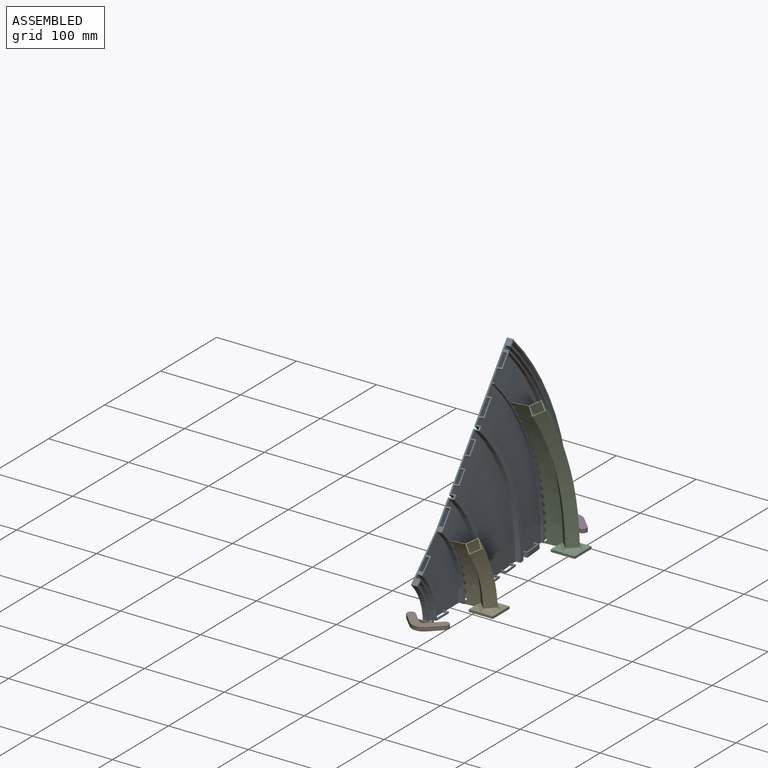
[diagram: assembled view]
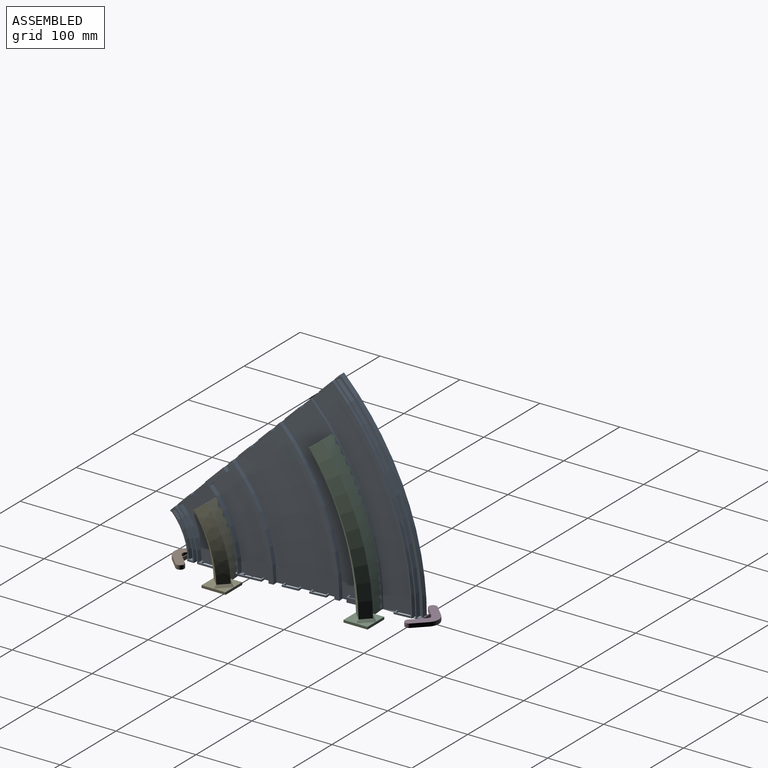
[diagram: assembled view, second angle]
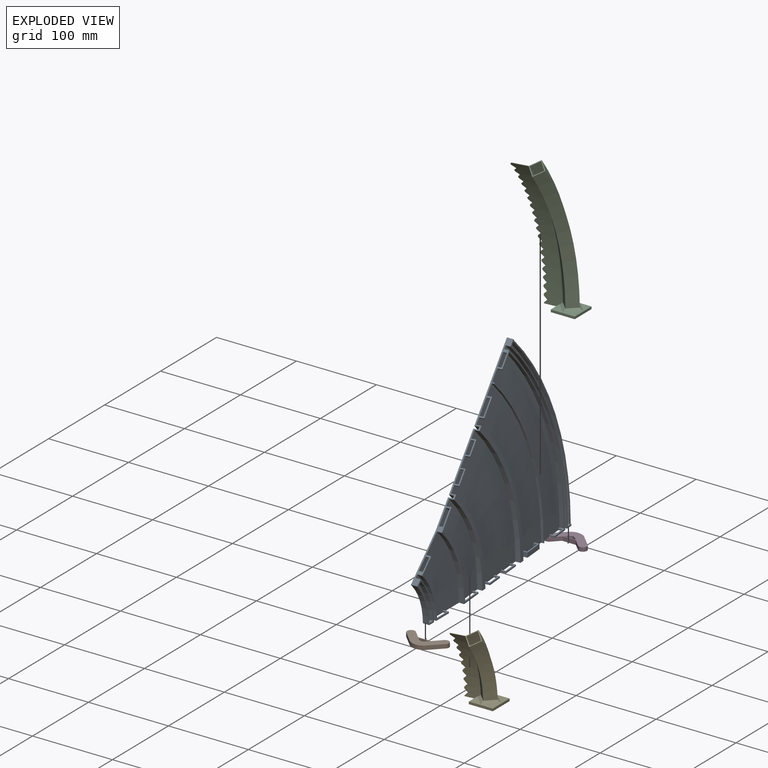
[diagram: exploded view]
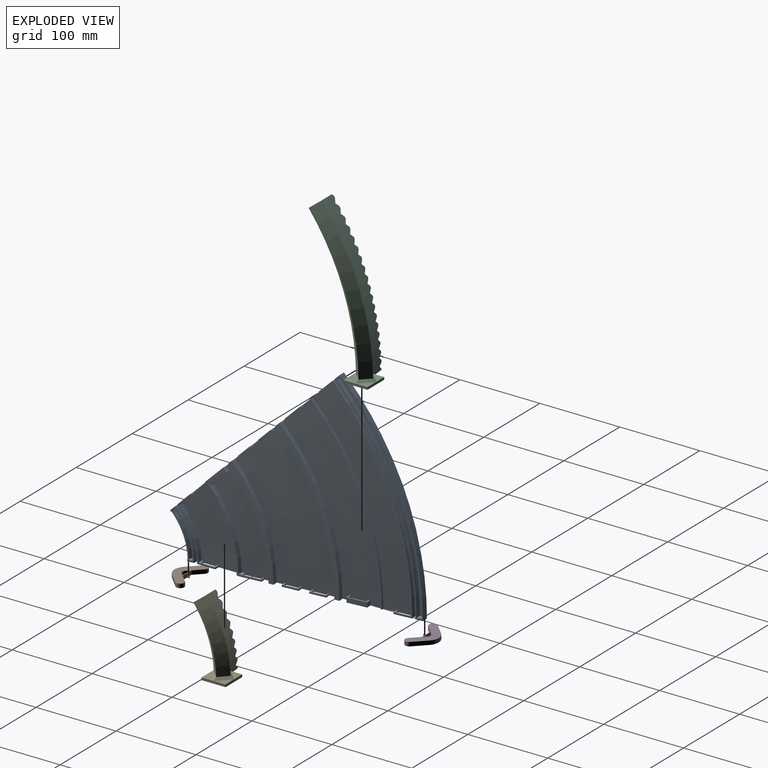
[diagram: exploded view, second angle]
ASSEMBLY  parts=5 mates=4
PART A: 158 faces, bbox 27x302.6x250.5 mm
  f0: plane 17.99x17.99mm, normal (0,0.71,-0.71), area 58.7mm2, adj f1,f97,f98,f99,f101,f152
  f1: cone r=137.1mm half-angle=85deg, axis (-1,0,0), area 4208mm2, adj f0,f2,f22,f51,f52,f98,f99,f100
  f2: cylinder r=137.1mm len=94.94mm, axis (-1,0,0), area 652.2mm2, adj f1,f50,f51,f97,f145,f152
  f3: cone r=178.54mm half-angle=5deg, axis (1,0,0), area 843.2mm2, adj f17,f18,f95,f143
  f4: cylinder r=340.09mm len=237.06mm, axis (-1,0,0), area 1476.4mm2, adj f5,f19,f69,f124
  f5: plane 238.13x99.7mm, normal (1,0,0), area 396.2mm2, adj f4,f30,f69,f124
  f6: cylinder r=347.09mm len=242.01mm, axis (-1,0,0), area 1671.7mm2, adj f7,f33,f65,f120
  f7: cone r=351.47mm half-angle=85deg, axis (-1,0,0), area 1187.1mm2, adj f6,f8,f65,f120
  f8: cone r=352.47mm half-angle=11deg, axis (1,0,0), area 1424.4mm2, adj f7,f9,f65,f120
  f9: plane 247.02x103.52mm, normal (1,0,0), area 465.6mm2, adj f8,f34,f65,f120
  f10: cone r=173.88mm half-angle=5deg, axis (1,0,0), area 794.2mm2, adj f42,f43,f62,f117
  f11: plane 51.62x23.05mm, normal (1,0,0), area 91.8mm2, adj f12,f45,f60,f61,f115,f116
  f12: cone r=74.7mm half-angle=10.9deg, axis (-1,0,0), area 291.6mm2, adj f11,f13,f60,f115
  f13: plane 53.14x25.05mm, normal (1,0,0), area 245.7mm2, adj f12,f14,f60,f115
  f14: cylinder r=80mm len=53.14mm, axis (-1,0,0), area 364.8mm2, adj f13,f46,f60,f115
  f15: cylinder r=81.5mm len=54.2mm, axis (-1,0,0), area 372.1mm2, adj f20,f46,f58,f113
  f16: cylinder r=87mm len=58.09mm, axis (-1,0,0), area 398.8mm2, adj f21,f48,f54,f109
  f17: cone r=172.56mm half-angle=85deg, axis (-1,0,0), area 827.3mm2, adj f3,f22,f51,f52,f96,f144
  f18: cone r=178mm half-angle=85deg, axis (-1,0,0), area 12063.6mm2, adj f3,f23,f51,f52,f83,f84,f85,f86
  f19: cone r=340.09mm half-angle=85deg, axis (-1,0,0), area 9142.4mm2, adj f4,f29,f51,f52,f69,f71,f72,f73
  f20: plane 60.46x27.87mm, normal (1,0,0), area 262.3mm2, adj f15,f47,f51,f52,f58,f59,f113,f114
  f21: plane 95.53x72.18mm, normal (1,0,0), area 4176.4mm2, adj f16,f49,f51,f52,f54,f55,f56,f57
  f22: cone r=172.02mm half-angle=5deg, axis (1,0,0), area 839mm2, adj f1,f17,f51,f52
  f23: cone r=250.26mm half-angle=5deg, axis (1,0,0), area 1217.3mm2, adj f18,f24,f51,f52
  f24: cone r=256.24mm half-angle=85deg, axis (-1,0,0), area 1193.4mm2, adj f23,f25,f51,f52
  f25: cone r=255.7mm half-angle=5deg, axis (1,0,0), area 1246.4mm2, adj f24,f26,f51,f52
  f26: cone r=302.52mm half-angle=85deg, axis (-1,0,0), area 10272.6mm2, adj f25,f27,f51,f52,f76,f77,f78,f79
  f27: cone r=302.52mm half-angle=5deg, axis (1,0,0), area 713.1mm2, adj f26,f28,f51,f52
  f28: cone r=302.78mm half-angle=85deg, axis (-1,0,0), area 357.6mm2, adj f27,f29,f51,f52
  f29: cone r=304.28mm half-angle=5deg, axis (1,0,0), area 716.6mm2, adj f19,f28,f51,f52
  f30: cylinder r=341.59mm len=241.54mm, axis (-1,0,0), area 1540.6mm2, adj f5,f31,f51,f52,f70,f125
  f31: cone r=341.59mm half-angle=85deg, axis (-1,0,0), area 1083.5mm2, adj f30,f32,f51,f52
  f32: cylinder r=345.59mm len=244.37mm, axis (-1,0,0), area 1653.7mm2, adj f31,f33,f51,f52
  f33: plane 245.47x102.76mm, normal (1,0,0), area 406.8mm2, adj f6,f32,f51,f52,f64,f65,f119,f120
  f34: cylinder r=354.17mm len=250.43mm, axis (-1,0,0), area 1947.1mm2, adj f9,f35,f51,f52,f66,f121
  f35: plane 250.48x105.19mm, normal (-1,0,0), area 554.8mm2, adj f34,f36,f51,f52
  f36: cone r=254.05mm half-angle=85deg, axis (-1,0,0), area 23447.1mm2, adj f35,f37,f51,f52
  f37: cone r=254.57mm half-angle=5deg, axis (1,0,0), area 1198.4mm2, adj f36,f38,f51,f52
  f38: cone r=251.58mm half-angle=85deg, axis (-1,0,0), area 596.3mm2, adj f37,f39,f51,f52
  f39: cone r=251.06mm half-angle=5deg, axis (1,0,0), area 1184.3mm2, adj f38,f40,f51,f52
  f40: cone r=176.35mm half-angle=85deg, axis (-1,0,0), area 12588.2mm2, adj f39,f41,f51,f52
  f41: cone r=176.35mm half-angle=5deg, axis (1,0,0), area 832.2mm2, adj f40,f42,f51,f52
  f42: cone r=176.87mm half-angle=85deg, axis (-1,0,0), area 411.7mm2, adj f10,f41,f51,f52,f63,f118
  f43: cone r=173.36mm half-angle=85deg, axis (-1,0,0), area 4557.2mm2, adj f10,f44,f51,f52,f63,f118
  f44: plane 96.17x84.39mm, normal (-1,0,0), area 5170.7mm2, adj f43,f45,f51,f52
  f45: cylinder r=73mm len=51.62mm, axis (-1,0,0), area 401.3mm2, adj f11,f44,f51,f52
  f46: plane 57.63x29.88mm, normal (1,0,0), area 123.1mm2, adj f14,f15,f51,f52,f58,f59,f60,f61
  f47: cylinder r=85.5mm len=60.46mm, axis (-1,0,0), area 416.3mm2, adj f20,f48,f51,f52
  f48: plane 76.44x47.64mm, normal (1,0,0), area 186mm2, adj f16,f47,f51,f52,f54,f55,f109,f110
  f49: cylinder r=135.1mm len=95.53mm, axis (-1,0,0), area 657.9mm2, adj f21,f50,f51,f52
  f50: plane 96.94x41.57mm, normal (1,0,0), area 213.8mm2, adj f2,f49,f51,f52,f145,f150
  f51: plane 198.82x198.82mm, normal (0,-0.71,0.71), area 1006.1mm2, adj f1,f2,f17,f18,f19,f20,f21,f22
  f52: plane 281.17x26.91mm, normal (0,0,-1), area 1012.3mm2, adj f1,f17,f18,f19,f20,f21,f22,f23
  f53: plane 13.01x13.01mm, normal (-1,0,0), area 32.8mm2, adj f51,f54,f56,f57
  f54: plane 14.94x14.94mm, normal (0,0.71,-0.71), area 53.9mm2, adj f16,f21,f48,f53,f55,f56,f57
  f55: plane 6.2x1.41mm, normal (0,0.71,0.71), area 12.4mm2, adj f21,f48,f51,f54
  f56: plane 4.7x1.41mm, normal (0,-0.71,-0.71), area 9.4mm2, adj f21,f51,f53,f54
  f57: plane 4.7x1.41mm, normal (0,0.71,0.71), area 9.4mm2, adj f21,f51,f53,f54
  f58: plane 6.2x0.02mm, normal (0,0.71,-0.71), area 0.2mm2, adj f15,f20,f46,f59
  f59: plane 6.2x1.41mm, normal (0,0.71,0.71), area 12.4mm2, adj f20,f46,f51,f58
  f60: plane 6.2x4.93mm, normal (0,0.71,-0.71), area 31.9mm2, adj f11,f12,f13,f14,f46,f61
  f61: plane 1.41x1.41mm, normal (0,-0.71,-0.71), area 2mm2, adj f11,f46,f51,f60
  f62: plane 5.98x0.38mm, normal (0,0.71,-0.71), area 0mm2, adj f10,f63
  f63: plane 5.98x1.79mm, normal (-0.09,0.7,0.7), area 12mm2, adj f42,f43,f51,f62
  f64: plane 6.42x6.42mm, normal (1,0.06,0.06), area 14.2mm2, adj f33,f51,f65,f66
  f65: plane 6.61x5.01mm, normal (0,0.71,-0.71), area 32.4mm2, adj f6,f7,f8,f9,f33,f64,f66
  f66: plane 1.43x1.43mm, normal (0,0.71,0.71), area 1.7mm2, adj f34,f51,f64,f65
  f67: plane 16.75x16.75mm, normal (1,0.06,0.06), area 43.6mm2, adj f51,f69,f70,f71
  f68: plane 12.97x12.97mm, normal (-1,-0.06,-0.06), area 32.8mm2, adj f51,f69,f72,f73
  f69: plane 15.72x15.72mm, normal (0,0.71,-0.71), area 51.1mm2, adj f4,f5,f19,f67,f68,f70,f71,f72
  f70: plane 1.43x1.43mm, normal (0,0.71,0.71), area 1mm2, adj f30,f51,f67,f69
  f71: plane 6.18x1.8mm, normal (0.09,-0.7,-0.7), area 12.4mm2, adj f19,f51,f67,f69
  f72: plane 4.69x1.71mm, normal (0.09,-0.7,-0.7), area 9.4mm2, adj f19,f51,f68,f69
  f73: plane 4.69x1.71mm, normal (-0.09,0.7,0.7), area 9.4mm2, adj f19,f51,f68,f69
  f74: plane 18.74x18.74mm, normal (1,0.06,0.06), area 49.2mm2, adj f51,f76,f77,f78
  f75: plane 16.07x16.07mm, normal (-1,-0.06,-0.06), area 41.6mm2, adj f51,f76,f79,f80
  f76: plane 17.71x17.71mm, normal (0,0.71,-0.71), area 54.8mm2, adj f26,f74,f75,f77,f78,f79,f80
  f77: plane 6.18x1.8mm, normal (-0.09,0.7,0.7), area 12.4mm2, adj f26,f51,f74,f76
  f78: plane 6.18x1.8mm, normal (0.09,-0.7,-0.7), area 12.4mm2, adj f26,f51,f74,f76
  f79: plane 4.69x1.71mm, normal (0.09,-0.7,-0.7), area 9.4mm2, adj f26,f51,f75,f76
  f80: plane 4.69x1.71mm, normal (-0.09,0.7,0.7), area 9.4mm2, adj f26,f51,f75,f76
  f81: plane 12.97x12.97mm, normal (-1,-0.06,-0.06), area 32.8mm2, adj f51,f83,f86,f87
  f82: plane 15.29x15.29mm, normal (1,0.06,0.06), area 39.4mm2, adj f51,f83,f84,f85
  f83: plane 14.26x14.26mm, normal (0,0.71,-0.71), area 45.1mm2, adj f18,f81,f82,f84,f85,f86,f87
  f84: plane 6.18x1.8mm, normal (-0.09,0.7,0.7), area 12.4mm2, adj f18,f51,f82,f83
  f85: plane 6.18x1.8mm, normal (0.09,-0.7,-0.7), area 12.4mm2, adj f18,f51,f82,f83
  f86: plane 4.69x1.71mm, normal (0.09,-0.7,-0.7), area 9.4mm2, adj f18,f51,f81,f83
  f87: plane 4.69x1.71mm, normal (-0.09,0.7,0.7), area 9.4mm2, adj f18,f51,f81,f83
  f88: plane 12.97x12.97mm, normal (-1,-0.06,-0.06), area 32.8mm2, adj f51,f90,f93,f94
  f89: plane 15.29x15.29mm, normal (1,0.06,0.06), area 39.4mm2, adj f51,f90,f91,f92
  f90: plane 14.26x14.26mm, normal (0,0.71,-0.71), area 45.1mm2, adj f18,f88,f89,f91,f92,f93,f94
  f91: plane 6.18x1.8mm, normal (-0.09,0.7,0.7), area 12.4mm2, adj f18,f51,f89,f90
  f92: plane 6.18x1.8mm, normal (0.09,-0.7,-0.7), area 12.4mm2, adj f18,f51,f89,f90
  f93: plane 4.69x1.71mm, normal (0.09,-0.7,-0.7), area 9.4mm2, adj f18,f51,f88,f90
  f94: plane 4.69x1.71mm, normal (-0.09,0.7,0.7), area 9.4mm2, adj f18,f51,f88,f90
  f95: plane 6.18x0.39mm, normal (0,0.71,-0.71), area 0mm2, adj f3,f96
  f96: plane 6.18x1.8mm, normal (-0.09,0.7,0.7), area 12.4mm2, adj f17,f18,f51,f95
  f97: plane 23.47x23.41mm, normal (1,0.06,0.06), area 161.3mm2, adj f0,f2,f51,f99,f100,f152,f155
  f98: plane 4.72x4.49mm, normal (-0.09,0.7,0.7), area 27.8mm2, adj f0,f1,f51,f101
  f99: plane 6.2x4.65mm, normal (0.09,-0.7,-0.7), area 28.3mm2, adj f0,f1,f51,f97,f101,f154,f155
  f100: plane 6.2x4.65mm, normal (-0.09,0.7,0.7), area 37.2mm2, adj f1,f51,f97,f154,f155
  f101: plane 18.82x18.82mm, normal (-1,-0.06,-0.06), area 122.7mm2, adj f0,f51,f98,f99
  f102: plane 24.51x6mm, normal (1,0.09,0), area 145.5mm2, adj f52,f104,f105,f106,f107,f153,f156,f157
  f103: plane 20.72x5.9mm, normal (-1,-0.09,0), area 122.7mm2, adj f52,f106,f107,f153
  f104: plane 6.19x6.01mm, normal (0.09,-1,0), area 37.2mm2, adj f26,f52,f102,f156
  f105: plane 6.19x6.01mm, normal (-0.09,1,0), area 37.2mm2, adj f26,f52,f102,f157
  f106: plane 6.19x6.01mm, normal (-0.09,1,0), area 28.4mm2, adj f26,f52,f102,f103,f153,f156
  f107: plane 6.19x6.01mm, normal (0.09,-1,0), area 28.4mm2, adj f26,f52,f102,f103,f153,f157
  f108: plane 16.4x2mm, normal (-1,0,0), area 32.8mm2, adj f52,f109,f111,f112
  f109: plane 21.12x6.2mm, normal (0,0,1), area 53.9mm2, adj f16,f21,f48,f108,f110,f111,f112
  f110: plane 6.2x2mm, normal (0,1,0), area 12.4mm2, adj f21,f48,f52,f109
  f111: plane 4.7x2mm, normal (0,1,0), area 9.4mm2, adj f21,f52,f108,f109
  f112: plane 4.7x2mm, normal (0,-1,0), area 9.4mm2, adj f21,f52,f108,f109
  f113: plane 6.2x0.02mm, normal (0,0,1), area 0.2mm2, adj f15,f20,f46,f114
  f114: plane 6.2x2mm, normal (0,1,0), area 12.4mm2, adj f20,f46,f52,f113
  f115: plane 6.98x6.2mm, normal (0,0,1), area 31.9mm2, adj f11,f12,f13,f14,f46,f116
  f116: plane 2x1mm, normal (0,-1,0), area 2mm2, adj f11,f46,f52,f115
  f117: plane 5.98x0.54mm, normal (0,0,1), area 0mm2, adj f10,f118
  f118: plane 5.98x2.01mm, normal (-0.09,1,0), area 12mm2, adj f42,f43,f52,f117
  f119: plane 7.07x2mm, normal (1,0.09,0), area 14.2mm2, adj f33,f52,f120,f121
  f120: plane 7.08x6.61mm, normal (0,0,1), area 32.4mm2, adj f6,f7,f8,f9,f33,f119,f121
  f121: plane 2.01x0.87mm, normal (0,1,0), area 1.7mm2, adj f34,f52,f119,f120
  f122: plane 16.34x2mm, normal (-1,-0.09,0), area 32.8mm2, adj f52,f124,f127,f128
  f123: plane 21.69x2mm, normal (1,0.09,0), area 43.6mm2, adj f52,f124,f125,f126
  f124: plane 22.24x7.99mm, normal (0,0,1), area 51.1mm2, adj f4,f5,f19,f122,f123,f125,f126,f127
  f125: plane 2.01x0.49mm, normal (0,1,0), area 1mm2, adj f30,f52,f123,f124
  f126: plane 6.18x2mm, normal (0.09,-1,0), area 12.4mm2, adj f19,f52,f123,f124
  f127: plane 4.69x2mm, normal (-0.09,1,0), area 9.4mm2, adj f19,f52,f122,f124
  f128: plane 4.69x2mm, normal (0.09,-1,0), area 9.4mm2, adj f19,f52,f122,f124
  f129: plane 16.34x2mm, normal (-1,-0.09,0), area 32.8mm2, adj f52,f131,f134,f135
  f130: plane 20.12x2mm, normal (1,0.09,0), area 40.4mm2, adj f52,f131,f132,f133
  f131: plane 20.66x7.94mm, normal (0,0,1), area 48.2mm2, adj f18,f129,f130,f132,f133,f134,f135
  f132: plane 6.18x2.01mm, normal (0.09,-1,0), area 12.4mm2, adj f18,f52,f130,f131
  f133: plane 6.18x2mm, normal (-0.09,1,0), area 12.4mm2, adj f18,f52,f130,f131
  f134: plane 4.69x2.01mm, normal (-0.09,1,0), area 9.4mm2, adj f18,f52,f129,f131
  f135: plane 4.69x2mm, normal (0.09,-1,0), area 9.4mm2, adj f18,f52,f129,f131
  f136: plane 16.34x2mm, normal (-1,-0.09,0), area 32.8mm2, adj f52,f138,f141,f142
  f137: plane 20.12x2mm, normal (1,0.09,0), area 40.4mm2, adj f52,f138,f139,f140
  f138: plane 20.66x7.94mm, normal (0,0,1), area 48.2mm2, adj f18,f136,f137,f139,f140,f141,f142
  f139: plane 6.18x2mm, normal (0.09,-1,0), area 12.4mm2, adj f18,f52,f137,f138
  f140: plane 6.18x2mm, normal (-0.09,1,0), area 12.4mm2, adj f18,f52,f137,f138
  f141: plane 4.69x2mm, normal (-0.09,1,0), area 9.4mm2, adj f18,f52,f136,f138
  f142: plane 4.69x2mm, normal (0.09,-1,0), area 9.4mm2, adj f18,f52,f136,f138
  f143: plane 6.18x0.55mm, normal (0,0,1), area 0mm2, adj f3,f144
  f144: plane 6.18x2.01mm, normal (-0.09,1,0), area 12.4mm2, adj f17,f18,f52,f143
  f145: plane 27.21x8.62mm, normal (0,0,1), area 69.9mm2, adj f1,f2,f50,f146,f147,f148,f149,f150
  f146: plane 4.69x2.01mm, normal (0.09,-1,0), area 9.4mm2, adj f1,f52,f145,f151
  f147: plane 4.69x2.01mm, normal (-0.09,1,0), area 9.4mm2, adj f1,f52,f145,f151
  f148: plane 6.18x2.01mm, normal (-0.09,1,0), area 12.4mm2, adj f1,f52,f145,f149
  f149: plane 27.19x2.38mm, normal (1,0.09,0), area 54.6mm2, adj f52,f145,f148,f150
  f150: plane 2x0.07mm, normal (0,1,0), area 0.1mm2, adj f50,f52,f145,f149
  f151: plane 20.72x2mm, normal (-1,-0.09,0), area 41.6mm2, adj f52,f145,f146,f147
  f152: plane 6.26x2.79mm, normal (0,-0.71,-0.71), area 24.3mm2, adj f0,f1,f2,f97
  f153: plane 20.85x3.31mm, normal (0,0,1), area 31.2mm2, adj f102,f103,f106,f107
  f154: plane 1.36x1.36mm, normal (-1,-0.06,-0.06), area 0.2mm2, adj f1,f99,f100,f155
  f155: plane 6.33x1.65mm, normal (0,0.71,-0.71), area 11.2mm2, adj f97,f99,f100,f154
  f156: plane 6.35x2.34mm, normal (0,0,1), area 11.2mm2, adj f26,f102,f104,f106
  f157: plane 6.36x2.54mm, normal (0,0,1), area 12.4mm2, adj f26,f102,f105,f107
PART B: 18 faces, bbox 52.4x27.1x5 mm
  f0: plane 14.03x5mm, normal (0,-1,0), area 70.1mm2, adj f1,f15,f16,f17
  f1: plane 5x3.48mm, normal (-0.71,0.71,0), area 24.6mm2, adj f0,f2,f16,f17
  f2: cylinder r=5mm len=7.07mm, axis (0,0,-1), area 39.3mm2, adj f1,f15,f16,f17
  f3: plane 9.67x9.67mm, normal (-0.71,0.71,0), area 68.3mm2, adj f4,f14,f16,f17
  f4: plane 7.76x5mm, normal (0,1,0), area 38.8mm2, adj f3,f5,f16,f17
  f5: plane 5x3mm, normal (1,0,0), area 15mm2, adj f4,f6,f16,f17
  f6: plane 5x0.5mm, normal (0,1,0), area 2.5mm2, adj f5,f7,f16,f17
  f7: plane 5x3mm, normal (-1,0,0), area 15mm2, adj f6,f8,f16,f17
  f8: plane 7.76x5mm, normal (0,1,0), area 38.8mm2, adj f7,f9,f16,f17
  f9: plane 9.67x9.67mm, normal (0.71,0.71,0), area 68.3mm2, adj f8,f10,f16,f17
  f10: cylinder r=5mm len=8.54mm, axis (0,0,-1), area 78.5mm2, adj f9,f11,f16,f17
  f11: plane 14.14x14.14mm, normal (-0.71,-0.71,0), area 100mm2, adj f10,f12,f16,f17
  f12: cylinder r=15mm len=21.21mm, axis (0,0,-1), area 117.8mm2, adj f11,f13,f16,f17
  f13: plane 14.14x14.14mm, normal (0.71,-0.71,0), area 100mm2, adj f12,f14,f16,f17
  f14: cylinder r=5mm len=8.54mm, axis (0,0,-1), area 78.5mm2, adj f3,f13,f16,f17
  f15: plane 5x3.48mm, normal (0.71,0.71,0), area 24.6mm2, adj f0,f2,f16,f17
  f16: plane 52.43x27.07mm, normal (0,0,1), area 652.1mm2, adj f0,f1,f2,f3,f4,f5,f6,f7
  f17: plane 52.43x27.07mm, normal (0,0,-1), area 652.1mm2, adj f0,f1,f2,f3,f4,f5,f6,f7
PART C: 80 faces, bbox 48.1x85.5x190.2 mm
  f0: plane 14.34x14.33mm, normal (0,0,1), area 102.7mm2, adj f72,f73,f79
  f1: cone r=303.28mm half-angle=5deg, axis (1,0,0), area 4113mm2, adj f3,f4,f5,f6,f7,f8,f9,f10
  f2: cone r=303.78mm half-angle=5deg, axis (1,0,0), area 4125.3mm2, adj f3,f4,f5,f6,f7,f8,f9,f10
  f3: cone r=303.28mm half-angle=85deg, axis (-1,0,0), area 1mm2, adj f1,f2,f40,f67
  f4: cone r=303.28mm half-angle=85deg, axis (-1,0,0), area 1.1mm2, adj f1,f2,f48,f63
  f5: cone r=303.28mm half-angle=85deg, axis (-1,0,0), area 1.1mm2, adj f1,f2,f46,f65
  f6: cone r=303.28mm half-angle=85deg, axis (-1,0,0), area 1.1mm2, adj f1,f2,f34,f61
  f7: cone r=303.28mm half-angle=85deg, axis (-1,0,0), area 1.2mm2, adj f1,f2,f58,f59
  f8: cone r=303.28mm half-angle=85deg, axis (-1,0,0), area 1.2mm2, adj f1,f2,f36,f57
  f9: cone r=303.28mm half-angle=85deg, axis (-1,0,0), area 0.5mm2, adj f1,f2,f31,f53
  f10: cone r=303.28mm half-angle=85deg, axis (-1,0,0), area 1mm2, adj f1,f2,f44,f55
  f11: cone r=303.28mm half-angle=85deg, axis (-1,0,0), area 1mm2, adj f1,f2,f42,f51
  f12: cone r=303.28mm half-angle=85deg, axis (-1,0,0), area 1mm2, adj f1,f2,f38,f49
  f13: cone r=303.28mm half-angle=85deg, axis (-1,0,0), area 1.1mm2, adj f1,f2,f47,f68
  f14: cone r=303.28mm half-angle=85deg, axis (-1,0,0), area 1.1mm2, adj f1,f2,f45,f64
  f15: cone r=303.28mm half-angle=85deg, axis (-1,0,0), area 1mm2, adj f1,f2,f43,f54
  f16: cone r=303.28mm half-angle=85deg, axis (-1,0,0), area 1mm2, adj f1,f2,f41,f56
  f17: cone r=303.28mm half-angle=85deg, axis (-1,0,0), area 1mm2, adj f1,f2,f39,f50
  f18: cone r=303.28mm half-angle=85deg, axis (-1,0,0), area 1mm2, adj f1,f2,f37,f52
  f19: cone r=303.28mm half-angle=85deg, axis (-1,0,0), area 1.2mm2, adj f1,f2,f35,f62
  f20: cone r=303.28mm half-angle=85deg, axis (-1,0,0), area 1.1mm2, adj f1,f2,f33,f66
  f21: cone r=305.49mm half-angle=45deg, axis (1,0,0), area 2487mm2, adj f22,f29,f30,f69
  f22: cone r=296.3mm half-angle=45deg, axis (-1,0,0), area 2487mm2, adj f21,f23,f30,f69
  f23: cone r=305.49mm half-angle=45deg, axis (1,0,0), area 2564.2mm2, adj f22,f29,f30,f69
  f24: cone r=305.25mm half-angle=45deg, axis (-1,0,0), area 2752.5mm2, adj f1,f25,f30,f76
  f25: cone r=294.88mm half-angle=45deg, axis (1,0,0), area 2817.4mm2, adj f24,f26,f30,f77
  f26: cone r=305.49mm half-angle=45deg, axis (-1,0,0), area 2921.4mm2, adj f25,f27,f30,f77,f78
  f27: cone r=316.1mm half-angle=45deg, axis (1,0,0), area 2850mm2, adj f2,f26,f30,f79
  f28: cone r=303.28mm half-angle=85deg, axis (-1,0,0), area 1.2mm2, adj f1,f2,f32,f60
  f29: cone r=314.68mm half-angle=45deg, axis (-1,0,0), area 2564.2mm2, adj f21,f23,f30,f69
  f30: plane 41.91x16.94mm, normal (0,-0.6,0.8), area 66.4mm2, adj f1,f2,f21,f22,f23,f24,f25,f26
  f31: plane 48.1x30mm, normal (0,0,-1), area 909.1mm2, adj f1,f2,f9,f71,f72,f73,f74,f75
  f32: plane 1.94x1.94mm, normal (-0.71,0,0.71), area 1.6mm2, adj f1,f2,f28,f30
  f33: plane 4.02x4.02mm, normal (-0.71,0,0.71), area 3.2mm2, adj f1,f2,f20,f34
  f34: plane 4.03x4.03mm, normal (-0.71,0,-0.71), area 3.2mm2, adj f1,f2,f6,f33
  f35: plane 4.02x4.02mm, normal (-0.71,0,0.71), area 3.3mm2, adj f1,f2,f19,f36
  f36: plane 4.03x4.03mm, normal (-0.71,0,-0.71), area 3.3mm2, adj f1,f2,f8,f35
  f37: plane 4.02x4.02mm, normal (-0.71,0,0.71), area 2.9mm2, adj f1,f2,f18,f38
  f38: plane 4.02x4.02mm, normal (-0.71,0,-0.71), area 2.9mm2, adj f1,f2,f12,f37
  f39: plane 4.02x4.02mm, normal (-0.71,0,0.71), area 2.9mm2, adj f1,f2,f17,f40
  f40: plane 4.02x4.02mm, normal (-0.71,0,-0.71), area 2.9mm2, adj f1,f2,f3,f39
  f41: plane 4.02x4.02mm, normal (-0.71,0,0.71), area 2.9mm2, adj f1,f2,f16,f42
  f42: plane 4.02x4.02mm, normal (-0.71,0,-0.71), area 2.9mm2, adj f1,f2,f11,f41
  f43: plane 4.02x4.02mm, normal (-0.71,0,0.71), area 2.8mm2, adj f1,f2,f15,f44
  f44: plane 4.02x4.02mm, normal (-0.71,0,-0.71), area 2.8mm2, adj f1,f2,f10,f43
  f45: plane 4.02x4.02mm, normal (-0.71,0,0.71), area 3.1mm2, adj f1,f2,f14,f46
  f46: plane 4.02x4.02mm, normal (-0.71,0,-0.71), area 3.1mm2, adj f1,f2,f5,f45
  f47: plane 4.02x4.02mm, normal (-0.71,0,0.71), area 3mm2, adj f1,f2,f13,f48
  f48: plane 4.02x4.02mm, normal (-0.71,0,-0.71), area 3mm2, adj f1,f2,f4,f47
  f49: plane 4.02x4.02mm, normal (-0.71,0,0.71), area 2.9mm2, adj f1,f2,f12,f50
  f50: plane 4.02x4.02mm, normal (-0.71,0,-0.71), area 2.9mm2, adj f1,f2,f17,f49
  f51: plane 4.02x4.02mm, normal (-0.71,0,0.71), area 2.9mm2, adj f1,f2,f11,f52
  f52: plane 4.02x4.02mm, normal (-0.71,0,-0.71), area 2.9mm2, adj f1,f2,f18,f51
  f53: plane 4.02x4.02mm, normal (-0.71,0,0.71), area 2.8mm2, adj f1,f2,f9,f54
  f54: plane 4.02x4.02mm, normal (-0.71,0,-0.71), area 2.8mm2, adj f1,f2,f15,f53
  f55: plane 4.02x4.02mm, normal (-0.71,0,0.71), area 2.8mm2, adj f1,f2,f10,f56
  f56: plane 4.02x4.02mm, normal (-0.71,0,-0.71), area 2.8mm2, adj f1,f2,f16,f55
  f57: plane 4.03x4.03mm, normal (-0.71,0,0.71), area 3.4mm2, adj f1,f2,f8,f58
  f58: plane 4.03x4.03mm, normal (-0.71,0,-0.71), area 3.4mm2, adj f1,f2,f7,f57
  f59: plane 4.03x4.03mm, normal (-0.71,0,0.71), area 3.5mm2, adj f1,f2,f7,f60
  f60: plane 4.03x4.03mm, normal (-0.71,0,-0.71), area 3.5mm2, adj f1,f2,f28,f59
  f61: plane 4.02x4.02mm, normal (-0.71,0,0.71), area 3.2mm2, adj f1,f2,f6,f62
  f62: plane 4.03x4.03mm, normal (-0.71,0,-0.71), area 3.2mm2, adj f1,f2,f19,f61
  f63: plane 4.02x4.02mm, normal (-0.71,0,0.71), area 3mm2, adj f1,f2,f4,f64
  f64: plane 4.02x4.02mm, normal (-0.71,0,-0.71), area 3mm2, adj f1,f2,f14,f63
  f65: plane 4.02x4.02mm, normal (-0.71,0,0.71), area 3.1mm2, adj f1,f2,f5,f66
  f66: plane 4.03x4.03mm, normal (-0.71,0,-0.71), area 3.1mm2, adj f1,f2,f20,f65
  f67: plane 4.02x4.02mm, normal (-0.71,0,0.71), area 2.9mm2, adj f1,f2,f3,f68
  f68: plane 4.02x4.02mm, normal (-0.71,0,-0.71), area 3mm2, adj f1,f2,f13,f67
  f69: plane 18.39x18.39mm, normal (0,0,1), area 169mm2, adj f21,f22,f23,f29
  f70: plane 30x30mm, normal (0,0,1), area 358.1mm2, adj f1,f71,f72,f74,f75,f76,f77,f78
  f71: plane 15.09x3mm, normal (-1,0,0), area 45.3mm2, adj f1,f31,f70,f74
  f72: plane 30x3.34mm, normal (0,1,0), area 90.2mm2, adj f0,f31,f70,f73,f75,f78,f79
  f73: plane 14.42x3.06mm, normal (-1,0,0), area 43.2mm2, adj f0,f2,f31,f72,f79
  f74: plane 30x3mm, normal (0,-1,0), area 90mm2, adj f31,f70,f71,f75
  f75: plane 30x3mm, normal (1,0,0), area 90mm2, adj f31,f70,f72,f74
  f76: bspline ~16.39x16.39mm, area 73.9mm2, adj f1,f24,f70,f77
  f77: bspline ~16.93x16.93mm, area 76.1mm2, adj f25,f26,f70,f76,f78
  f78: bspline ~16.68x16.68mm, area 75.2mm2, adj f26,f70,f72,f77,f79
  f79: bspline ~18.41x18.41mm, area 74.5mm2, adj f0,f2,f27,f72,f73,f78
PART D: same geometry as B
PART E: 50 faces, bbox 44.9x51.7x89.4 mm
  f0: plane 14.75x14.74mm, normal (0,0,1), area 108.7mm2, adj f42,f43,f49
  f1: cone r=135.89mm half-angle=5deg, axis (1,0,0), area 1555.7mm2, adj f3,f4,f5,f6,f7,f8,f9,f10
  f2: cone r=138.08mm half-angle=5deg, axis (1,0,0), area 1561.9mm2, adj f3,f4,f5,f6,f7,f8,f9,f10
  f3: plane 2.08x2.01mm, normal (-1,0,0), area 1.2mm2, adj f1,f2,f28,f37
  f4: plane 2.01x1.79mm, normal (-1,0,0), area 1.2mm2, adj f1,f2,f29,f38
  f5: plane 2.01x1.54mm, normal (-1,0,0), area 1.1mm2, adj f1,f2,f30,f35
  f6: plane 2.01x1.33mm, normal (-1,0,0), area 1.1mm2, adj f1,f2,f22,f36
  f7: plane 2.01x0.97mm, normal (-1,0,0), area 1mm2, adj f1,f2,f27,f33
  f8: plane 2.01x0.81mm, normal (-1,0,0), area 1mm2, adj f1,f2,f24,f34
  f9: plane 1x0.51mm, normal (-1,0,0), area 0.5mm2, adj f1,f2,f21,f31
  f10: plane 2.01x0.65mm, normal (-1,0,0), area 1mm2, adj f1,f2,f25,f32
  f11: plane 39.47x16.94mm, normal (0,-0.6,0.8), area 65.1mm2, adj f1,f2,f13,f14,f15,f16,f17,f18
  f12: plane 2.01x1.14mm, normal (-1,0,0), area 1.1mm2, adj f1,f2,f23,f26
  f13: cone r=137.58mm half-angle=45deg, axis (-1,0,0), area 1163.8mm2, adj f1,f11,f14,f46
  f14: cone r=127.22mm half-angle=45deg, axis (1,0,0), area 1192.9mm2, adj f11,f13,f15,f47
  f15: cone r=137.83mm half-angle=45deg, axis (-1,0,0), area 1298.4mm2, adj f11,f14,f16,f47,f48
  f16: cone r=148.43mm half-angle=45deg, axis (1,0,0), area 1268.4mm2, adj f2,f11,f15,f49
  f17: cone r=137.83mm half-angle=45deg, axis (1,0,0), area 1079.4mm2, adj f11,f18,f20,f39
  f18: cone r=128.63mm half-angle=45deg, axis (-1,0,0), area 1079.4mm2, adj f11,f17,f19,f39
  f19: cone r=137.83mm half-angle=45deg, axis (1,0,0), area 1156.6mm2, adj f11,f18,f20,f39
  f20: cone r=147.02mm half-angle=45deg, axis (-1,0,0), area 1156.6mm2, adj f11,f17,f19,f39
  f21: plane 44.87x30mm, normal (0,0,-1), area 907.5mm2, adj f1,f2,f9,f41,f42,f43,f44,f45
  f22: plane 4.01x4.01mm, normal (-0.71,0,-0.71), area 3mm2, adj f1,f2,f6,f23
  f23: plane 4.01x4.01mm, normal (-0.71,0,0.71), area 3mm2, adj f1,f2,f12,f22
  f24: plane 4x4mm, normal (-0.71,0,-0.71), area 2.9mm2, adj f1,f2,f8,f25
  f25: plane 4x4mm, normal (-0.71,0,0.71), area 2.9mm2, adj f1,f2,f10,f24
  f26: plane 4.01x4.01mm, normal (-0.71,0,-0.71), area 2.9mm2, adj f1,f2,f12,f27
  f27: plane 4x4mm, normal (-0.71,0,0.71), area 2.9mm2, adj f1,f2,f7,f26
  f28: plane 1.15x1.14mm, normal (-0.71,0,0.71), area 0.9mm2, adj f1,f2,f3,f11
  f29: plane 4.02x4.02mm, normal (-0.71,0,-0.71), area 3.3mm2, adj f1,f2,f4,f30
  f30: plane 4.01x4.01mm, normal (-0.71,0,0.71), area 3.2mm2, adj f1,f2,f5,f29
  f31: plane 4x4mm, normal (-0.71,0,0.71), area 2.8mm2, adj f1,f2,f9,f32
  f32: plane 4x4mm, normal (-0.71,0,-0.71), area 2.8mm2, adj f1,f2,f10,f31
  f33: plane 4.01x4.01mm, normal (-0.71,0,-0.71), area 2.9mm2, adj f1,f2,f7,f34
  f34: plane 4x4mm, normal (-0.71,0,0.71), area 2.9mm2, adj f1,f2,f8,f33
  f35: plane 4.02x4.02mm, normal (-0.71,0,-0.71), area 3.1mm2, adj f1,f2,f5,f36
  f36: plane 4.01x4.01mm, normal (-0.71,0,0.71), area 3.1mm2, adj f1,f2,f6,f35
  f37: plane 4.03x4.03mm, normal (-0.71,0,-0.71), area 3.4mm2, adj f1,f2,f3,f38
  f38: plane 4.02x4.02mm, normal (-0.71,0,0.71), area 3.4mm2, adj f1,f2,f4,f37
  f39: plane 18.4x18.39mm, normal (0,0,1), area 169mm2, adj f17,f18,f19,f20
  f40: plane 30x30mm, normal (0,0,1), area 353.9mm2, adj f1,f41,f43,f44,f45,f46,f47,f48
  f41: plane 14.78x3mm, normal (-1,0,0), area 44.3mm2, adj f1,f21,f40,f44
  f42: plane 14.76x3mm, normal (-1,0,0), area 44.2mm2, adj f0,f2,f21,f43
  f43: plane 30x3.05mm, normal (0,1,0), area 90mm2, adj f0,f21,f40,f42,f45,f48,f49
  f44: plane 30x3mm, normal (0,-1,0), area 90mm2, adj f21,f40,f41,f45
  f45: plane 30x3mm, normal (1,0,0), area 90mm2, adj f21,f40,f43,f44
  f46: bspline ~17.81x17.8mm, area 73.9mm2, adj f1,f13,f40,f47
  f47: bspline ~16.88x16.87mm, area 75.8mm2, adj f14,f15,f40,f46,f48
  f48: bspline ~16.84x16.83mm, area 74.2mm2, adj f15,f40,f43,f47,f49
  f49: bspline ~18.4x18.38mm, area 73.2mm2, adj f0,f2,f16,f43,f48
PLACE A t=(0,0,31.03)mm
PLACE B t=(10.82,-139.26,31.03)mm
PLACE C t=(-0.04,0.01,31.03)mm
PLACE D rot(axis=(0,0,1),180deg) t=(-8.02,137.98,31.03)mm
PLACE E t=(0,-0.01,31.03)mm
MATE planar D.f17 <-> A.f52  axis (0,0,-1) through (4.83,137.28,31.03)mm
MATE planar B.f17 <-> A.f52  axis (0,0,-1) through (10.82,-145.64,31.03)mm
MATE planar E.f21 <-> A.f52  axis (0,0,-1) through (44.48,-76.31,31.03)mm
MATE planar C.f31 <-> A.f52  axis (0,0,-1) through (29.75,91.07,31.03)mm
